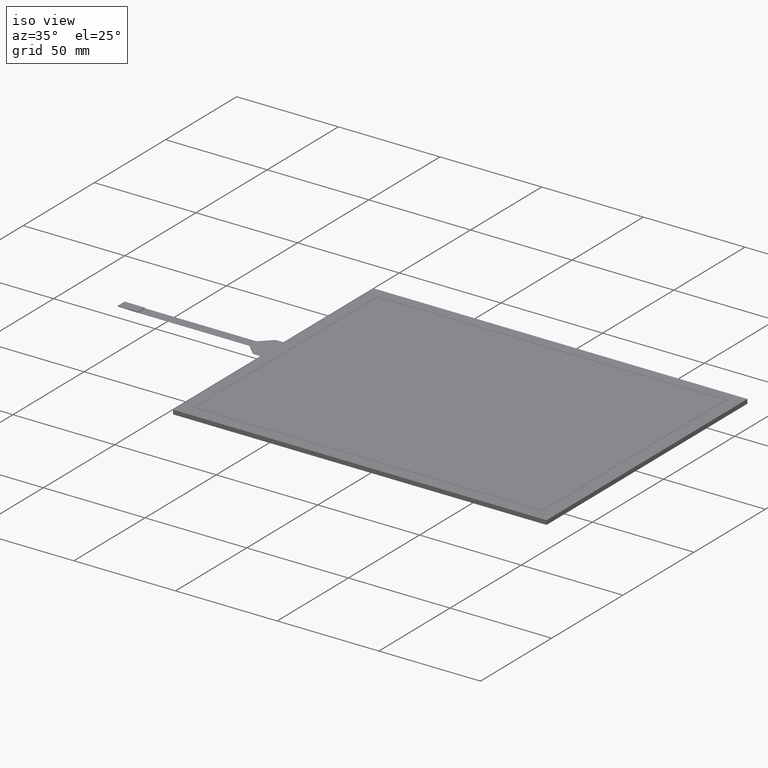
[diagram: clean part render]
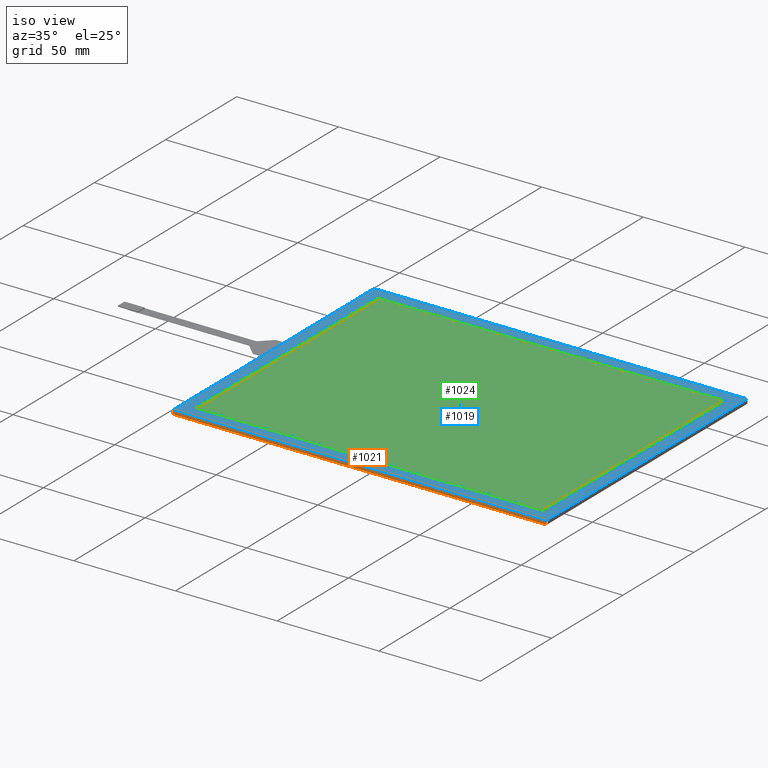
[diagram: same view with three faces highlighted in distinct colors, each labeled with its STEP entity id]
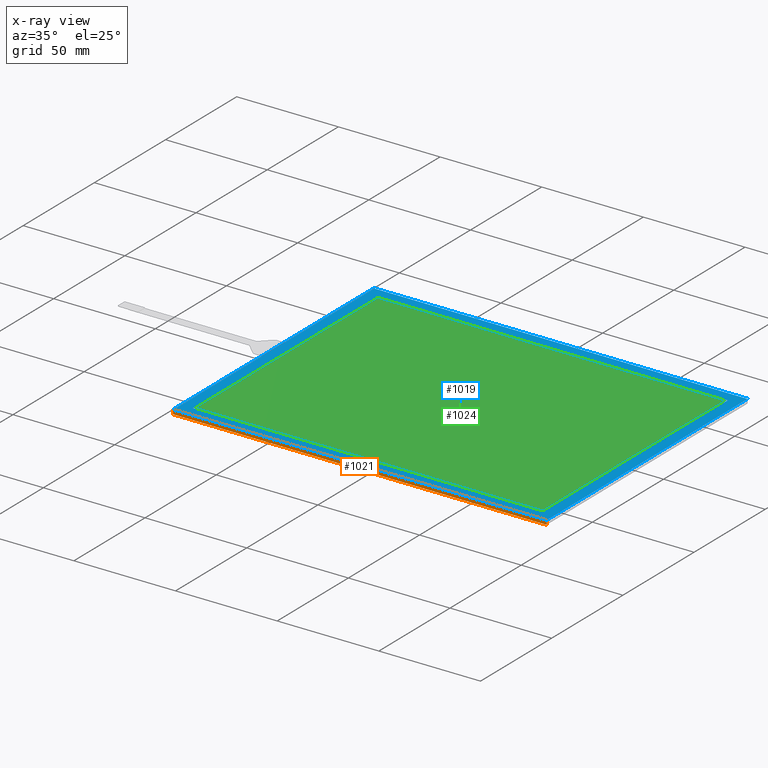
[diagram: x-ray of the same camera — body ghosted, the three highlighted faces saturated]
A machine part, iso view with three faces highlighted in distinct colors.
The next image is the same camera in x-ray (body ghosted, the three faces saturated) — at least one of them is partly hidden behind the body in this view.
Their STEP definitions:

[orange] entity #1021 — the highlighted planar face has unit normal (0, -1, 0).
#89=PLANE('',#1104);
#140=FACE_OUTER_BOUND('',#194,.T.);
#194=EDGE_LOOP('',(#949,#950,#951,#952));
#315=LINE('',#1625,#441);
#319=LINE('',#1632,#445);
#320=LINE('',#1635,#446);
#321=LINE('',#1636,#447);
#441=VECTOR('',#1341,10.);
#445=VECTOR('',#1347,10.);
#446=VECTOR('',#1350,10.);
#447=VECTOR('',#1351,10.);
#549=VERTEX_POINT('',#1622);
#550=VERTEX_POINT('',#1624);
#552=VERTEX_POINT('',#1630);
#553=VERTEX_POINT('',#1634);
#683=EDGE_CURVE('',#549,#550,#315,.T.);
#687=EDGE_CURVE('',#549,#552,#319,.T.);
#688=EDGE_CURVE('',#553,#552,#320,.T.);
#689=EDGE_CURVE('',#550,#553,#321,.T.);
#949=ORIENTED_EDGE('',*,*,#683,.F.);
#950=ORIENTED_EDGE('',*,*,#687,.T.);
#951=ORIENTED_EDGE('',*,*,#688,.F.);
#952=ORIENTED_EDGE('',*,*,#689,.F.);
#1021=ADVANCED_FACE('',(#140),#89,.T.);
#1104=AXIS2_PLACEMENT_3D('',#1633,#1348,#1349);
#1341=DIRECTION('',(1.,1.45048190479062E-16,0.));
#1347=DIRECTION('',(0.,0.,-1.));
#1348=DIRECTION('center_axis',(1.45048190479062E-16,-1.,0.));
#1349=DIRECTION('ref_axis',(-1.,-1.45048190479062E-16,0.));
#1350=DIRECTION('',(-1.,-1.45048190479062E-16,0.));
#1351=DIRECTION('',(0.,0.,-1.));
#1622=CARTESIAN_POINT('',(-91.85,-70.55,0.));
#1624=CARTESIAN_POINT('',(91.85,-70.55,0.));
#1625=CARTESIAN_POINT('',(-91.85,-70.55,0.));
#1630=CARTESIAN_POINT('',(-91.85,-70.55,-2.1));
#1632=CARTESIAN_POINT('',(-91.85,-70.55,0.));
#1633=CARTESIAN_POINT('Origin',(91.85,-70.55,0.));
#1634=CARTESIAN_POINT('',(91.85,-70.55,-2.1));
#1635=CARTESIAN_POINT('',(-91.85,-70.55,-2.1));
#1636=CARTESIAN_POINT('',(91.85,-70.55,0.));

[blue] entity #1019 — the highlighted planar face has unit normal (0, 0, 1).
#47=FACE_BOUND('',#191,.T.);
#87=PLANE('',#1102);
#138=FACE_OUTER_BOUND('',#190,.T.);
#190=EDGE_LOOP('',(#933,#934,#935,#936));
#191=EDGE_LOOP('',(#937,#938,#939,#940));
#301=LINE('',#1596,#427);
#305=LINE('',#1604,#431);
#308=LINE('',#1610,#434);
#311=LINE('',#1615,#437);
#313=LINE('',#1621,#439);
#314=LINE('',#1623,#440);
#315=LINE('',#1625,#441);
#316=LINE('',#1626,#442);
#427=VECTOR('',#1317,10.);
#431=VECTOR('',#1323,10.);
#434=VECTOR('',#1328,10.);
#437=VECTOR('',#1333,10.);
#439=VECTOR('',#1339,10.);
#440=VECTOR('',#1340,10.);
#441=VECTOR('',#1341,10.);
#442=VECTOR('',#1342,10.);
#539=VERTEX_POINT('',#1594);
#540=VERTEX_POINT('',#1595);
#543=VERTEX_POINT('',#1603);
#545=VERTEX_POINT('',#1609);
#547=VERTEX_POINT('',#1619);
#548=VERTEX_POINT('',#1620);
#549=VERTEX_POINT('',#1622);
#550=VERTEX_POINT('',#1624);
#669=EDGE_CURVE('',#539,#540,#301,.T.);
#673=EDGE_CURVE('',#543,#539,#305,.T.);
#676=EDGE_CURVE('',#545,#543,#308,.T.);
#679=EDGE_CURVE('',#540,#545,#311,.T.);
#681=EDGE_CURVE('',#547,#548,#313,.T.);
#682=EDGE_CURVE('',#548,#549,#314,.T.);
#683=EDGE_CURVE('',#549,#550,#315,.T.);
#684=EDGE_CURVE('',#550,#547,#316,.T.);
#933=ORIENTED_EDGE('',*,*,#681,.T.);
#934=ORIENTED_EDGE('',*,*,#682,.T.);
#935=ORIENTED_EDGE('',*,*,#683,.T.);
#936=ORIENTED_EDGE('',*,*,#684,.T.);
#937=ORIENTED_EDGE('',*,*,#669,.T.);
#938=ORIENTED_EDGE('',*,*,#679,.T.);
#939=ORIENTED_EDGE('',*,*,#676,.T.);
#940=ORIENTED_EDGE('',*,*,#673,.T.);
#1019=ADVANCED_FACE('',(#138,#47),#87,.T.);
#1102=AXIS2_PLACEMENT_3D('',#1618,#1337,#1338);
#1317=DIRECTION('',(-2.73706754915293E-16,1.,0.));
#1323=DIRECTION('',(-1.,-1.03036939640386E-16,0.));
#1328=DIRECTION('',(0.,-1.,0.));
#1333=DIRECTION('',(1.,0.,0.));
#1337=DIRECTION('center_axis',(0.,0.,1.));
#1338=DIRECTION('ref_axis',(1.,0.,0.));
#1339=DIRECTION('',(-1.,0.,0.));
#1340=DIRECTION('',(2.51786936839157E-16,-1.,0.));
#1341=DIRECTION('',(1.,1.45048190479062E-16,0.));
#1342=DIRECTION('',(-1.25893468419578E-16,1.,0.));
#1594=CARTESIAN_POINT('',(-86.2,-64.9,0.));
#1595=CARTESIAN_POINT('',(-86.2,64.9,0.));
#1596=CARTESIAN_POINT('',(-86.2,-32.45,0.));
#1603=CARTESIAN_POINT('',(86.2,-64.9,0.));
#1604=CARTESIAN_POINT('',(43.1,-64.9,0.));
#1609=CARTESIAN_POINT('',(86.2,64.9,0.));
#1610=CARTESIAN_POINT('',(86.2,32.45,0.));
#1615=CARTESIAN_POINT('',(-43.1,64.9,0.));
#1618=CARTESIAN_POINT('Origin',(-3.5527136788005E-14,4.44089209850063E-15,
0.));
#1619=CARTESIAN_POINT('',(91.85,70.55,0.));
#1620=CARTESIAN_POINT('',(-91.8500000000001,70.55,0.));
#1621=CARTESIAN_POINT('',(91.85,70.55,0.));
#1622=CARTESIAN_POINT('',(-91.85,-70.55,0.));
#1623=CARTESIAN_POINT('',(-91.8500000000001,70.55,0.));
#1624=CARTESIAN_POINT('',(91.85,-70.55,0.));
#1625=CARTESIAN_POINT('',(-91.85,-70.55,0.));
#1626=CARTESIAN_POINT('',(91.85,-70.55,0.));

[green] entity #1024 — the highlighted planar face has unit normal (0, 0, 1).
#92=PLANE('',#1107);
#143=FACE_OUTER_BOUND('',#197,.T.);
#197=EDGE_LOOP('',(#961,#962,#963,#964));
#289=LINE('',#1572,#415);
#293=LINE('',#1580,#419);
#296=LINE('',#1586,#422);
#299=LINE('',#1591,#425);
#415=VECTOR('',#1297,10.);
#419=VECTOR('',#1303,10.);
#422=VECTOR('',#1308,10.);
#425=VECTOR('',#1313,10.);
#531=VERTEX_POINT('',#1570);
#532=VERTEX_POINT('',#1571);
#535=VERTEX_POINT('',#1579);
#537=VERTEX_POINT('',#1585);
#657=EDGE_CURVE('',#531,#532,#289,.T.);
#661=EDGE_CURVE('',#535,#531,#293,.T.);
#664=EDGE_CURVE('',#537,#535,#296,.T.);
#667=EDGE_CURVE('',#532,#537,#299,.T.);
#961=ORIENTED_EDGE('',*,*,#657,.T.);
#962=ORIENTED_EDGE('',*,*,#667,.T.);
#963=ORIENTED_EDGE('',*,*,#664,.T.);
#964=ORIENTED_EDGE('',*,*,#661,.T.);
#1024=ADVANCED_FACE('',(#143),#92,.T.);
#1107=AXIS2_PLACEMENT_3D('',#1643,#1359,#1360);
#1297=DIRECTION('',(1.,0.,0.));
#1303=DIRECTION('',(0.,-1.,0.));
#1308=DIRECTION('',(-1.,0.,0.));
#1313=DIRECTION('',(0.,1.,0.));
#1359=DIRECTION('center_axis',(0.,0.,1.));
#1360=DIRECTION('ref_axis',(1.,0.,0.));
#1570=CARTESIAN_POINT('',(-85.2,-63.9,0.));
#1571=CARTESIAN_POINT('',(85.2,-63.9,0.));
#1572=CARTESIAN_POINT('',(-42.6,-63.9,0.));
#1579=CARTESIAN_POINT('',(-85.2,63.9,0.));
#1580=CARTESIAN_POINT('',(-85.2,31.95,0.));
#1585=CARTESIAN_POINT('',(85.2,63.9,0.));
#1586=CARTESIAN_POINT('',(42.6,63.9,0.));
#1591=CARTESIAN_POINT('',(85.2,-31.95,0.));
#1643=CARTESIAN_POINT('Origin',(-3.5527136788005E-14,4.44089209850063E-15,
0.));